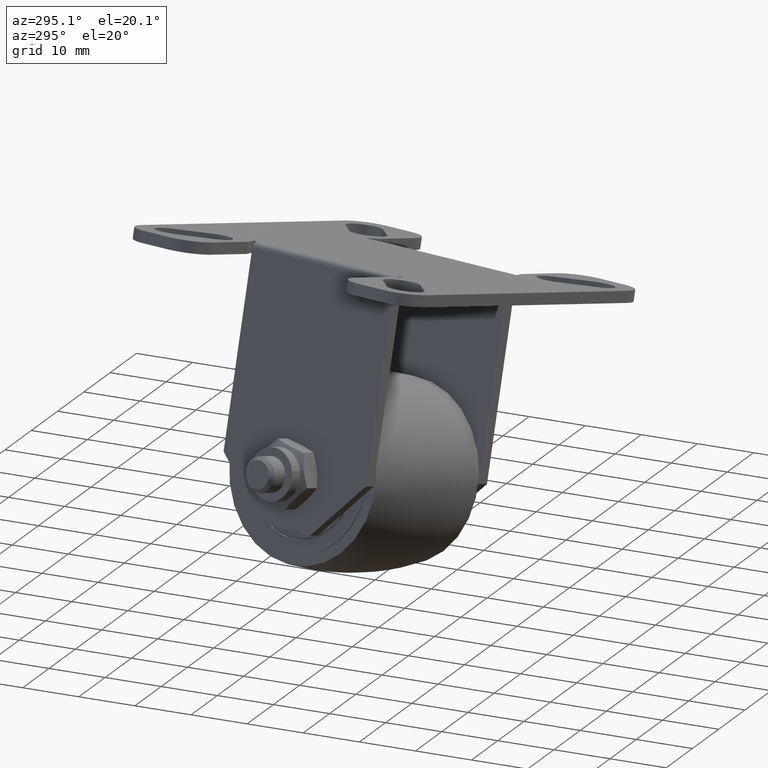
[diagram: clean part render]
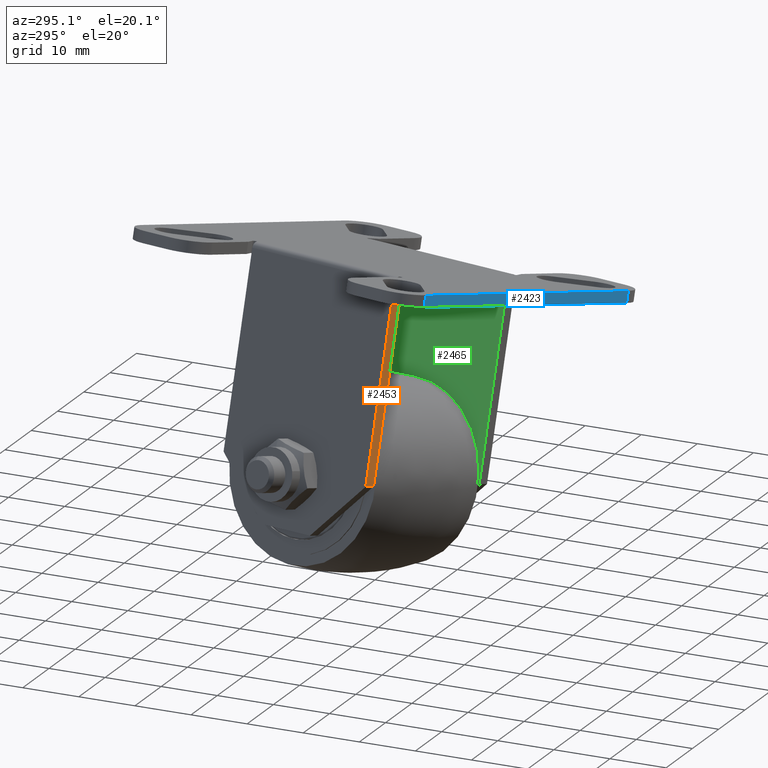
[diagram: same view with three faces highlighted in distinct colors, each labeled with its STEP entity id]
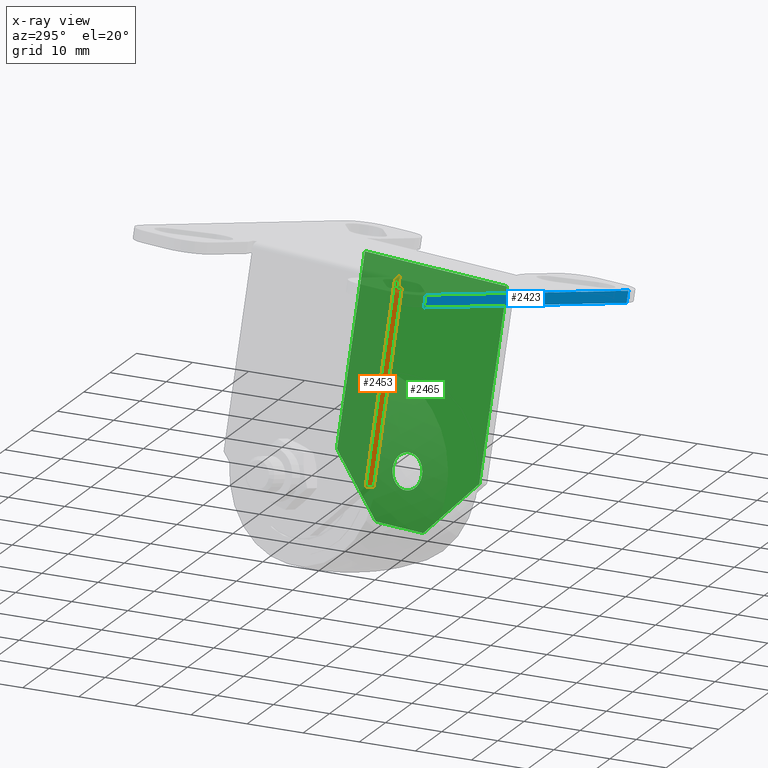
[diagram: x-ray of the same camera — body ghosted, the three highlighted faces saturated]
A machine part, auxiliary view with three faces highlighted in distinct colors.
The next image is the same camera in x-ray (body ghosted, the three faces saturated) — at least one of them is partly hidden behind the body in this view.
Their STEP definitions:

[orange] entity #2453 — the highlighted planar face has unit normal (-0.2575, -0.9657, 0.0339).
#70=LINE('',#4453,#218);
#102=LINE('',#4550,#250);
#124=LINE('',#4629,#272);
#159=LINE('',#4709,#307);
#160=LINE('',#4711,#308);
#161=LINE('',#4712,#309);
#218=VECTOR('',#3128,0.943055751199999);
#250=VECTOR('',#3198,0.0569442488000016);
#272=VECTOR('',#3266,2.);
#307=VECTOR('',#3381,33.5);
#308=VECTOR('',#3382,2.);
#309=VECTOR('',#3383,32.5);
#515=PLANE('',#2730);
#720=FACE_OUTER_BOUND('',#921,.T.);
#921=EDGE_LOOP('',(#2204,#2205,#2206,#2207,#2208,#2209,#2210));
#1049=CIRCLE('',#2683,1.);
#1189=VERTEX_POINT('',#4450);
#1190=VERTEX_POINT('',#4452);
#1235=VERTEX_POINT('',#4547);
#1236=VERTEX_POINT('',#4549);
#1267=VERTEX_POINT('',#4613);
#1275=VERTEX_POINT('',#4708);
#1276=VERTEX_POINT('',#4710);
#1466=EDGE_CURVE('',#1190,#1189,#70,.T.);
#1515=EDGE_CURVE('',#1235,#1236,#102,.T.);
#1547=EDGE_CURVE('',#1267,#1235,#1049,.F.);
#1555=EDGE_CURVE('',#1189,#1236,#124,.T.);
#1594=EDGE_CURVE('',#1275,#1267,#159,.T.);
#1595=EDGE_CURVE('',#1276,#1275,#160,.T.);
#1596=EDGE_CURVE('',#1190,#1276,#161,.T.);
#2204=ORIENTED_EDGE('',*,*,#1594,.F.);
#2205=ORIENTED_EDGE('',*,*,#1595,.F.);
#2206=ORIENTED_EDGE('',*,*,#1596,.F.);
#2207=ORIENTED_EDGE('',*,*,#1466,.T.);
#2208=ORIENTED_EDGE('',*,*,#1555,.T.);
#2209=ORIENTED_EDGE('',*,*,#1515,.F.);
#2210=ORIENTED_EDGE('',*,*,#1547,.F.);
#2453=ADVANCED_FACE('',(#720),#515,.T.);
#2683=AXIS2_PLACEMENT_3D('',#4614,#3246,#3247);
#2730=AXIS2_PLACEMENT_3D('',#4707,#3379,#3380);
#3128=DIRECTION('',(-1.,0.,0.));
#3198=DIRECTION('',(1.,0.,0.));
#3246=DIRECTION('center_axis',(0.,-1.,0.));
#3247=DIRECTION('ref_axis',(0.,0.,1.));
#3266=DIRECTION('',(0.,0.,1.));
#3379=DIRECTION('center_axis',(0.,-1.,0.));
#3380=DIRECTION('ref_axis',(1.,0.,0.));
#3381=DIRECTION('',(0.,0.,1.));
#3382=DIRECTION('',(-1.,0.,0.));
#3383=DIRECTION('',(0.,0.,-1.));
#4450=CARTESIAN_POINT('',(-14.5029646181,-15.,0.));
#4452=CARTESIAN_POINT('',(-13.5599088669,-15.,0.));
#4453=CARTESIAN_POINT('',(-14.0314367425,-15.,0.));
#4547=CARTESIAN_POINT('',(-14.5599088669,-15.,2.));
#4549=CARTESIAN_POINT('',(-14.5029646181,-15.,2.));
#4550=CARTESIAN_POINT('',(-14.5314367425,-15.,2.));
#4613=CARTESIAN_POINT('',(-15.5599088669,-15.,1.));
#4614=CARTESIAN_POINT('Origin',(-14.5599088669,-15.,1.));
#4629=CARTESIAN_POINT('',(-14.5029646181,-15.,1.));
#4707=CARTESIAN_POINT('Origin',(-15.5599088669,-15.,0.));
#4708=CARTESIAN_POINT('',(-15.5599088669,-15.,-32.5));
#4709=CARTESIAN_POINT('',(-15.5599088669,-15.,-15.75));
#4710=CARTESIAN_POINT('',(-13.5599088669,-15.,-32.5));
#4711=CARTESIAN_POINT('',(-14.5599088669,-15.,-32.5));
#4712=CARTESIAN_POINT('',(-13.5599088669,-15.,-16.25));

[blue] entity #2423 — the highlighted planar face has unit normal (-0.2575, -0.9657, 0.0339).
#84=LINE('',#4491,#232);
#106=LINE('',#4564,#254);
#130=LINE('',#4640,#278);
#131=LINE('',#4642,#279);
#232=VECTOR('',#3154,52.);
#254=VECTOR('',#3208,52.);
#278=VECTOR('',#3282,2.);
#279=VECTOR('',#3285,2.);
#500=PLANE('',#2696);
#690=FACE_OUTER_BOUND('',#889,.T.);
#889=EDGE_LOOP('',(#2088,#2089,#2090,#2091));
#1184=VERTEX_POINT('',#4440);
#1208=VERTEX_POINT('',#4489);
#1242=VERTEX_POINT('',#4561);
#1243=VERTEX_POINT('',#4563);
#1486=EDGE_CURVE('',#1184,#1208,#84,.T.);
#1522=EDGE_CURVE('',#1242,#1243,#106,.T.);
#1561=EDGE_CURVE('',#1184,#1242,#130,.T.);
#1562=EDGE_CURVE('',#1208,#1243,#131,.T.);
#2088=ORIENTED_EDGE('',*,*,#1486,.T.);
#2089=ORIENTED_EDGE('',*,*,#1562,.T.);
#2090=ORIENTED_EDGE('',*,*,#1522,.F.);
#2091=ORIENTED_EDGE('',*,*,#1561,.F.);
#2423=ADVANCED_FACE('',(#690),#500,.T.);
#2696=AXIS2_PLACEMENT_3D('',#4641,#3283,#3284);
#3154=DIRECTION('',(1.,0.,0.));
#3208=DIRECTION('',(1.,0.,0.));
#3282=DIRECTION('',(0.,0.,1.));
#3283=DIRECTION('center_axis',(0.,-1.,0.));
#3284=DIRECTION('ref_axis',(1.,0.,0.));
#3285=DIRECTION('',(0.,0.,1.));
#4440=CARTESIAN_POINT('',(-26.,-30.,0.));
#4489=CARTESIAN_POINT('',(26.,-30.,0.));
#4491=CARTESIAN_POINT('',(1.06581410364E-14,-30.,0.));
#4561=CARTESIAN_POINT('',(-26.,-30.,2.));
#4563=CARTESIAN_POINT('',(26.,-30.,2.));
#4564=CARTESIAN_POINT('',(1.06581410364E-14,-30.,2.));
#4640=CARTESIAN_POINT('',(-26.,-30.,1.));
#4641=CARTESIAN_POINT('Origin',(-31.,-30.,0.));
#4642=CARTESIAN_POINT('',(26.,-30.,1.));

[green] entity #2465 — the highlighted planar face has unit normal (-0.9323, 0.2575, 0.2541).
#79=LINE('',#4476,#227);
#175=LINE('',#4741,#323);
#177=LINE('',#4746,#325);
#179=LINE('',#4750,#327);
#182=LINE('',#4756,#330);
#186=LINE('',#4763,#334);
#227=VECTOR('',#3143,30.);
#323=VECTOR('',#3411,32.5);
#325=VECTOR('',#3415,14.1421356237309);
#327=VECTOR('',#3419,32.5);
#330=VECTOR('',#3424,10.);
#334=VECTOR('',#3432,14.1421356237309);
#527=PLANE('',#2742);
#596=FACE_BOUND('',#937,.T.);
#732=FACE_OUTER_BOUND('',#936,.T.);
#936=EDGE_LOOP('',(#2273,#2274,#2275,#2276,#2277,#2278));
#937=EDGE_LOOP('',(#2279));
#1055=CIRCLE('',#2728,3.1);
#1200=VERTEX_POINT('',#4473);
#1201=VERTEX_POINT('',#4475);
#1273=VERTEX_POINT('',#4703);
#1284=VERTEX_POINT('',#4739);
#1285=VERTEX_POINT('',#4743);
#1287=VERTEX_POINT('',#4749);
#1289=VERTEX_POINT('',#4755);
#1478=EDGE_CURVE('',#1201,#1200,#79,.T.);
#1592=EDGE_CURVE('',#1273,#1273,#1055,.F.);
#1610=EDGE_CURVE('',#1200,#1284,#175,.T.);
#1612=EDGE_CURVE('',#1285,#1284,#177,.F.);
#1614=EDGE_CURVE('',#1201,#1287,#179,.T.);
#1617=EDGE_CURVE('',#1289,#1285,#182,.T.);
#1621=EDGE_CURVE('',#1287,#1289,#186,.T.);
#2273=ORIENTED_EDGE('',*,*,#1614,.F.);
#2274=ORIENTED_EDGE('',*,*,#1478,.T.);
#2275=ORIENTED_EDGE('',*,*,#1610,.T.);
#2276=ORIENTED_EDGE('',*,*,#1612,.F.);
#2277=ORIENTED_EDGE('',*,*,#1617,.F.);
#2278=ORIENTED_EDGE('',*,*,#1621,.F.);
#2279=ORIENTED_EDGE('',*,*,#1592,.F.);
#2465=ADVANCED_FACE('',(#732,#596),#527,.T.);
#2728=AXIS2_PLACEMENT_3D('',#4704,#3375,#3376);
#2742=AXIS2_PLACEMENT_3D('',#4762,#3430,#3431);
#3143=DIRECTION('',(0.,1.,0.));
#3375=DIRECTION('center_axis',(1.,0.,0.));
#3376=DIRECTION('ref_axis',(0.,-1.,0.));
#3411=DIRECTION('',(0.,0.,-1.));
#3415=DIRECTION('',(0.,-0.707106781186547,-0.707106781186547));
#3419=DIRECTION('',(0.,0.,-1.));
#3424=DIRECTION('',(0.,1.,0.));
#3430=DIRECTION('center_axis',(-1.,0.,0.));
#3431=DIRECTION('ref_axis',(0.,1.,0.));
#3432=DIRECTION('',(0.,0.707106781186547,-0.707106781186547));
#4473=CARTESIAN_POINT('',(13.5599088669,15.,0.));
#4475=CARTESIAN_POINT('',(13.5599088669,-15.,0.));
#4476=CARTESIAN_POINT('',(13.5599088669,0.,0.));
#4703=CARTESIAN_POINT('',(13.5599088669,3.1,-33.3));
#4704=CARTESIAN_POINT('Origin',(13.5599088669,0.,-33.3));
#4739=CARTESIAN_POINT('',(13.5599088669,15.,-32.5));
#4741=CARTESIAN_POINT('',(13.5599088669,15.,-16.25));
#4743=CARTESIAN_POINT('',(13.5599088669,5.,-42.5));
#4746=CARTESIAN_POINT('',(13.5599088669,10.,-37.5));
#4749=CARTESIAN_POINT('',(13.5599088669,-15.,-32.5));
#4750=CARTESIAN_POINT('',(13.5599088669,-15.,-16.25));
#4755=CARTESIAN_POINT('',(13.5599088669,-5.,-42.5));
#4756=CARTESIAN_POINT('',(13.5599088669,-2.6645352591E-15,-42.5));
#4762=CARTESIAN_POINT('Origin',(13.5599088669,-15.,0.));
#4763=CARTESIAN_POINT('',(13.5599088669,-10.,-37.5));